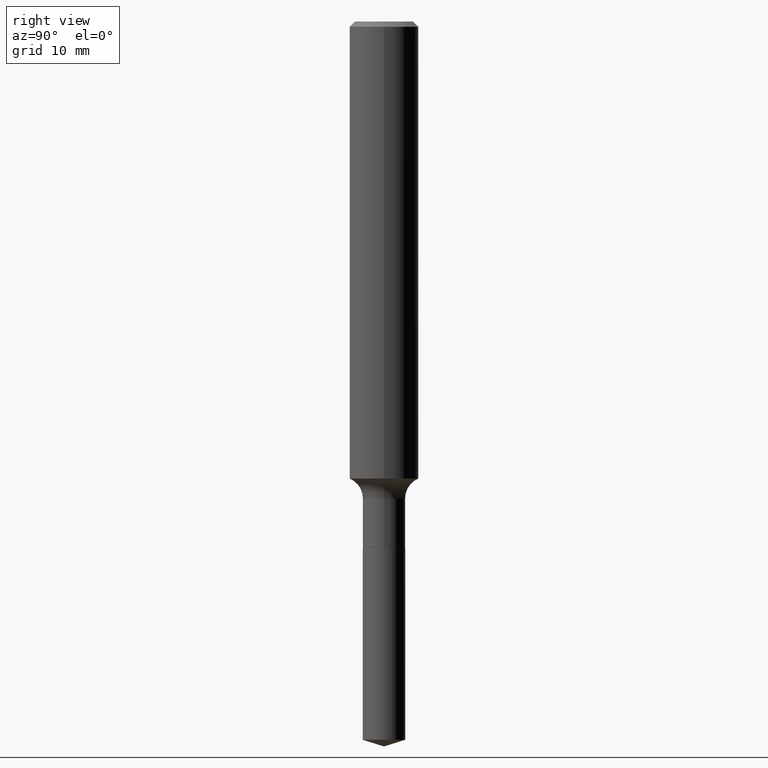
[diagram: clean part render]
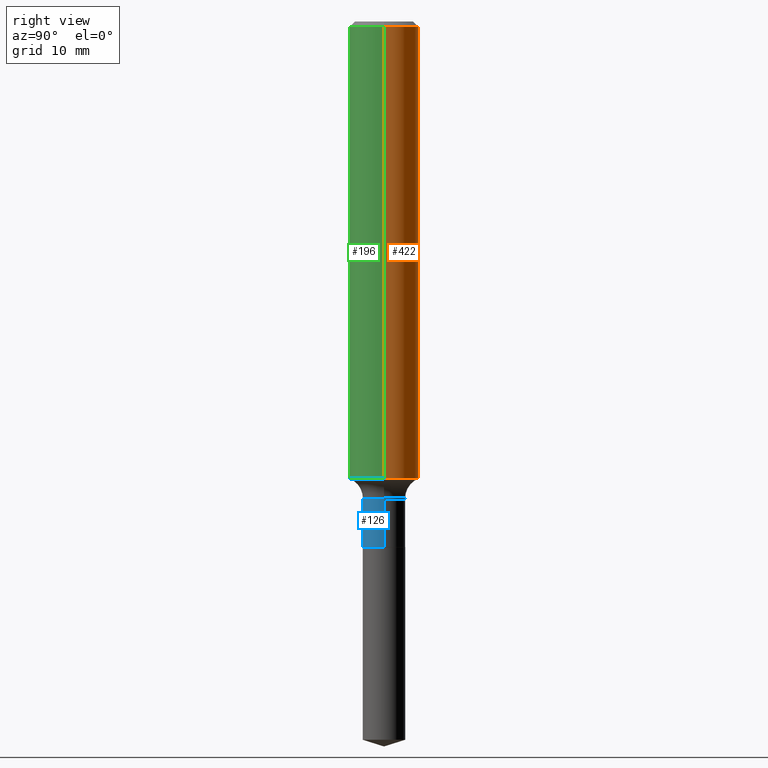
[diagram: same view with three faces highlighted in distinct colors, each labeled with its STEP entity id]
A machine part, right view with three faces highlighted in distinct colors.
Their STEP definitions:

[orange] entity #422 — the highlighted cylindrical surface (edge-blend (fillet) strip) has radius 3.175 mm, axis along (-0, 0, 1).
#7 = DIRECTION ( 'NONE',  ( -2.445468806185136597E-29, 3.491481338843145583E-15, 1.000000000000000000 ) ) ;
#9 = DIRECTION ( 'NONE',  ( 1.000000000000000000, -6.982962677686266711E-15, 0.000000000000000000 ) ) ;
#31 = LINE ( 'NONE', #302, #179 ) ;
#53 = ORIENTED_EDGE ( 'NONE', *, *, #330, .T. ) ;
#70 = LINE ( 'NONE', #298, #81 ) ;
#72 = AXIS2_PLACEMENT_3D ( 'NONE', #433, #171, #246 ) ;
#75 = DIRECTION ( 'NONE',  ( -2.445468806185136877E-29, 3.491481338843145188E-15, 1.000000000000000000 ) ) ;
#81 = VECTOR ( 'NONE', #107, 39.37007874015748143 ) ;
#107 = DIRECTION ( 'NONE',  ( -2.445468806185136877E-29, 3.491481338843145188E-15, 1.000000000000000000 ) ) ;
#110 = FACE_OUTER_BOUND ( 'NONE', #288, .T. ) ;
#133 = CARTESIAN_POINT ( 'NONE',  ( 0.1250000000000000000, -9.383356098140928781E-16, -0.01875000000000013808 ) ) ;
#140 = CARTESIAN_POINT ( 'NONE',  ( 0.1250000000000002776, -6.650922802362306987E-15, -1.654899999999999816 ) ) ;
#142 = CARTESIAN_POINT ( 'NONE',  ( -0.1250000000000002776, -4.889874047951393683E-15, -1.654899999999999816 ) ) ;
#165 = EDGE_CURVE ( 'NONE', #317, #364, #256, .T. ) ;
#171 = DIRECTION ( 'NONE',  ( -2.445468806185136597E-29, 3.491481338843145583E-15, 1.000000000000000000 ) ) ;
#179 = VECTOR ( 'NONE', #75, 39.37007874015748143 ) ;
#215 = ORIENTED_EDGE ( 'NONE', *, *, #375, .F. ) ;
#221 = ORIENTED_EDGE ( 'NONE', *, *, #486, .T. ) ;
#246 = DIRECTION ( 'NONE',  ( 1.000000000000000000, -6.982962677686267499E-15, 0.000000000000000000 ) ) ;
#256 = CIRCLE ( 'NONE', #430, 0.1250000000000000000 ) ;
#288 = EDGE_LOOP ( 'NONE', ( #53, #221, #362, #215 ) ) ;
#298 = CARTESIAN_POINT ( 'NONE',  ( -0.1250000000000001110, 8.881784197001260212E-16, -6.148668862818637832E-30 ) ) ;
#302 = CARTESIAN_POINT ( 'NONE',  ( 0.1250000000000001110, -8.728703347107841277E-16, 6.095220969744924646E-30 ) ) ;
#317 = VERTEX_POINT ( 'NONE', #133 ) ;
#330 = EDGE_CURVE ( 'NONE', #435, #419, #438, .T. ) ;
#350 = CARTESIAN_POINT ( 'NONE',  ( 4.585254011597164750E-31, -6.546527510330946532E-17, -0.01875000000000013808 ) ) ;
#362 = ORIENTED_EDGE ( 'NONE', *, *, #165, .F. ) ;
#364 = VERTEX_POINT ( 'NONE', #380 ) ;
#374 = CARTESIAN_POINT ( 'NONE',  ( 0.000000000000000000, 0.000000000000000000, 0.000000000000000000 ) ) ;
#375 = EDGE_CURVE ( 'NONE', #435, #317, #31, .T. ) ;
#376 = CYLINDRICAL_SURFACE ( 'NONE', #488, 0.1250000000000001110 ) ;
#380 = CARTESIAN_POINT ( 'NONE',  ( -0.1250000000000000000, -2.033580451677288798E-15, -0.01875000000000013808 ) ) ;
#419 = VERTEX_POINT ( 'NONE', #142 ) ;
#422 = ADVANCED_FACE ( 'NONE', ( #110 ), #376, .T. ) ;
#430 = AXIS2_PLACEMENT_3D ( 'NONE', #350, #7, #9 ) ;
#433 = CARTESIAN_POINT ( 'NONE',  ( 4.047006327355782261E-29, -5.778052467651521282E-15, -1.654899999999999816 ) ) ;
#435 = VERTEX_POINT ( 'NONE', #140 ) ;
#438 = CIRCLE ( 'NONE', #72, 0.1250000000000001943 ) ;
#484 = DIRECTION ( 'NONE',  ( -2.445468806185136597E-29, 3.491481338843145583E-15, 1.000000000000000000 ) ) ;
#486 = EDGE_CURVE ( 'NONE', #419, #364, #70, .T. ) ;
#488 = AXIS2_PLACEMENT_3D ( 'NONE', #374, #484, #489 ) ;
#489 = DIRECTION ( 'NONE',  ( 1.000000000000000000, -6.982962677686266711E-15, 4.876176775795935232E-29 ) ) ;

[blue] entity #126 — the highlighted cylindrical surface (edge-blend (fillet) strip) has radius 1.9558 mm, axis along (-0, 0, 1).
#13 = EDGE_CURVE ( 'NONE', #137, #343, #199, .T. ) ;
#17 = CIRCLE ( 'NONE', #452, 0.07699999999999998512 ) ;
#27 = VERTEX_POINT ( 'NONE', #313 ) ;
#45 = DIRECTION ( 'NONE',  ( -2.445468806185136597E-29, 3.491481338843145583E-15, 1.000000000000000000 ) ) ;
#79 = CARTESIAN_POINT ( 'NONE',  ( -0.07699999999999998512, -5.790619019732800574E-15, -1.903499999999999970 ) ) ;
#89 = VECTOR ( 'NONE', #316, 39.37007874015748143 ) ;
#98 = EDGE_CURVE ( 'NONE', #137, #129, #17, .T. ) ;
#102 = AXIS2_PLACEMENT_3D ( 'NONE', #357, #425, #195 ) ;
#111 = ORIENTED_EDGE ( 'NONE', *, *, #13, .F. ) ;
#126 = ADVANCED_FACE ( 'NONE', ( #198 ), #393, .T. ) ;
#129 = VERTEX_POINT ( 'NONE', #164 ) ;
#131 = CARTESIAN_POINT ( 'NONE',  ( -0.07699999999999997125, -5.790619019732800574E-15, -1.726900000000000102 ) ) ;
#137 = VERTEX_POINT ( 'NONE', #79 ) ;
#164 = CARTESIAN_POINT ( 'NONE',  ( 0.07699999999999998512, -7.183722854669770387E-15, -1.903499999999999970 ) ) ;
#190 = EDGE_CURVE ( 'NONE', #129, #27, #369, .T. ) ;
#195 = DIRECTION ( 'NONE',  ( 1.000000000000000000, -6.982962677686266711E-15, 4.876176775795936353E-29 ) ) ;
#198 = FACE_OUTER_BOUND ( 'NONE', #442, .T. ) ;
#199 = LINE ( 'NONE', #271, #89 ) ;
#204 = CARTESIAN_POINT ( 'NONE',  ( 4.654949872573407911E-29, -6.646034728487927566E-15, -1.903499999999999970 ) ) ;
#214 = CARTESIAN_POINT ( 'NONE',  ( 0.07699999999999998512, -5.376881261818424263E-16, 3.754656117362870056E-30 ) ) ;
#219 = VECTOR ( 'NONE', #372, 39.37007874015748143 ) ;
#229 = ORIENTED_EDGE ( 'NONE', *, *, #98, .T. ) ;
#257 = CARTESIAN_POINT ( 'NONE',  ( 4.223080081401112602E-29, -6.029439124048228051E-15, -1.726900000000000102 ) ) ;
#258 = AXIS2_PLACEMENT_3D ( 'NONE', #257, #409, #334 ) ;
#271 = CARTESIAN_POINT ( 'NONE',  ( -0.07699999999999998512, 5.471179065352770374E-16, -3.787580019496277076E-30 ) ) ;
#275 = CIRCLE ( 'NONE', #258, 0.07699999999999997125 ) ;
#313 = CARTESIAN_POINT ( 'NONE',  ( 0.07699999999999997125, -6.567127250230070871E-15, -1.726900000000000102 ) ) ;
#316 = DIRECTION ( 'NONE',  ( -2.445468806185136877E-29, 3.491481338843145188E-15, 1.000000000000000000 ) ) ;
#326 = ORIENTED_EDGE ( 'NONE', *, *, #469, .F. ) ;
#334 = DIRECTION ( 'NONE',  ( 1.000000000000000000, -6.982962677686273021E-15, 0.000000000000000000 ) ) ;
#343 = VERTEX_POINT ( 'NONE', #131 ) ;
#357 = CARTESIAN_POINT ( 'NONE',  ( 0.000000000000000000, 0.000000000000000000, 0.000000000000000000 ) ) ;
#369 = LINE ( 'NONE', #214, #219 ) ;
#372 = DIRECTION ( 'NONE',  ( -2.445468806185136877E-29, 3.491481338843145188E-15, 1.000000000000000000 ) ) ;
#390 = DIRECTION ( 'NONE',  ( 1.000000000000000000, -6.982962677686271444E-15, 0.000000000000000000 ) ) ;
#393 = CYLINDRICAL_SURFACE ( 'NONE', #102, 0.07699999999999998512 ) ;
#409 = DIRECTION ( 'NONE',  ( -2.445468806185136597E-29, 3.491481338843145583E-15, 1.000000000000000000 ) ) ;
#425 = DIRECTION ( 'NONE',  ( -2.445468806185136597E-29, 3.491481338843145583E-15, 1.000000000000000000 ) ) ;
#440 = ORIENTED_EDGE ( 'NONE', *, *, #190, .T. ) ;
#442 = EDGE_LOOP ( 'NONE', ( #111, #229, #440, #326 ) ) ;
#452 = AXIS2_PLACEMENT_3D ( 'NONE', #204, #45, #390 ) ;
#469 = EDGE_CURVE ( 'NONE', #343, #27, #275, .T. ) ;

[green] entity #196 — the highlighted cylindrical surface (edge-blend (fillet) strip) has radius 3.175 mm, axis along (-0, 0, 1).
#31 = LINE ( 'NONE', #302, #179 ) ;
#37 = EDGE_CURVE ( 'NONE', #364, #317, #361, .T. ) ;
#57 = CARTESIAN_POINT ( 'NONE',  ( 0.000000000000000000, 0.000000000000000000, 0.000000000000000000 ) ) ;
#60 = DIRECTION ( 'NONE',  ( -2.445468806185136597E-29, 3.491481338843145583E-15, 1.000000000000000000 ) ) ;
#70 = LINE ( 'NONE', #298, #81 ) ;
#75 = DIRECTION ( 'NONE',  ( -2.445468806185136877E-29, 3.491481338843145188E-15, 1.000000000000000000 ) ) ;
#81 = VECTOR ( 'NONE', #107, 39.37007874015748143 ) ;
#107 = DIRECTION ( 'NONE',  ( -2.445468806185136877E-29, 3.491481338843145188E-15, 1.000000000000000000 ) ) ;
#130 = DIRECTION ( 'NONE',  ( -2.445468806185136597E-29, 3.491481338843145583E-15, 1.000000000000000000 ) ) ;
#133 = CARTESIAN_POINT ( 'NONE',  ( 0.1250000000000000000, -9.383356098140928781E-16, -0.01875000000000013808 ) ) ;
#140 = CARTESIAN_POINT ( 'NONE',  ( 0.1250000000000002776, -6.650922802362306987E-15, -1.654899999999999816 ) ) ;
#142 = CARTESIAN_POINT ( 'NONE',  ( -0.1250000000000002776, -4.889874047951393683E-15, -1.654899999999999816 ) ) ;
#149 = ORIENTED_EDGE ( 'NONE', *, *, #37, .F. ) ;
#169 = ORIENTED_EDGE ( 'NONE', *, *, #375, .T. ) ;
#179 = VECTOR ( 'NONE', #75, 39.37007874015748143 ) ;
#180 = ORIENTED_EDGE ( 'NONE', *, *, #486, .F. ) ;
#186 = AXIS2_PLACEMENT_3D ( 'NONE', #253, #60, #360 ) ;
#196 = ADVANCED_FACE ( 'NONE', ( #395 ), #329, .T. ) ;
#232 = DIRECTION ( 'NONE',  ( -2.445468806185136597E-29, 3.491481338843145583E-15, 1.000000000000000000 ) ) ;
#253 = CARTESIAN_POINT ( 'NONE',  ( 4.047006327355782261E-29, -5.778052467651521282E-15, -1.654899999999999816 ) ) ;
#262 = EDGE_CURVE ( 'NONE', #419, #435, #283, .T. ) ;
#283 = CIRCLE ( 'NONE', #186, 0.1250000000000001943 ) ;
#298 = CARTESIAN_POINT ( 'NONE',  ( -0.1250000000000001110, 8.881784197001260212E-16, -6.148668862818637832E-30 ) ) ;
#302 = CARTESIAN_POINT ( 'NONE',  ( 0.1250000000000001110, -8.728703347107841277E-16, 6.095220969744924646E-30 ) ) ;
#317 = VERTEX_POINT ( 'NONE', #133 ) ;
#329 = CYLINDRICAL_SURFACE ( 'NONE', #480, 0.1250000000000001110 ) ;
#331 = EDGE_LOOP ( 'NONE', ( #180, #341, #169, #149 ) ) ;
#341 = ORIENTED_EDGE ( 'NONE', *, *, #262, .T. ) ;
#360 = DIRECTION ( 'NONE',  ( 1.000000000000000000, -6.982962677686267499E-15, 0.000000000000000000 ) ) ;
#361 = CIRCLE ( 'NONE', #406, 0.1250000000000000000 ) ;
#364 = VERTEX_POINT ( 'NONE', #380 ) ;
#375 = EDGE_CURVE ( 'NONE', #435, #317, #31, .T. ) ;
#380 = CARTESIAN_POINT ( 'NONE',  ( -0.1250000000000000000, -2.033580451677288798E-15, -0.01875000000000013808 ) ) ;
#395 = FACE_OUTER_BOUND ( 'NONE', #331, .T. ) ;
#406 = AXIS2_PLACEMENT_3D ( 'NONE', #468, #232, #459 ) ;
#419 = VERTEX_POINT ( 'NONE', #142 ) ;
#435 = VERTEX_POINT ( 'NONE', #140 ) ;
#459 = DIRECTION ( 'NONE',  ( 1.000000000000000000, -6.982962677686266711E-15, 0.000000000000000000 ) ) ;
#468 = CARTESIAN_POINT ( 'NONE',  ( 4.585254011597164750E-31, -6.546527510330946532E-17, -0.01875000000000013808 ) ) ;
#479 = DIRECTION ( 'NONE',  ( 1.000000000000000000, -6.982962677686266711E-15, 4.876176775795935232E-29 ) ) ;
#480 = AXIS2_PLACEMENT_3D ( 'NONE', #57, #130, #479 ) ;
#486 = EDGE_CURVE ( 'NONE', #419, #364, #70, .T. ) ;